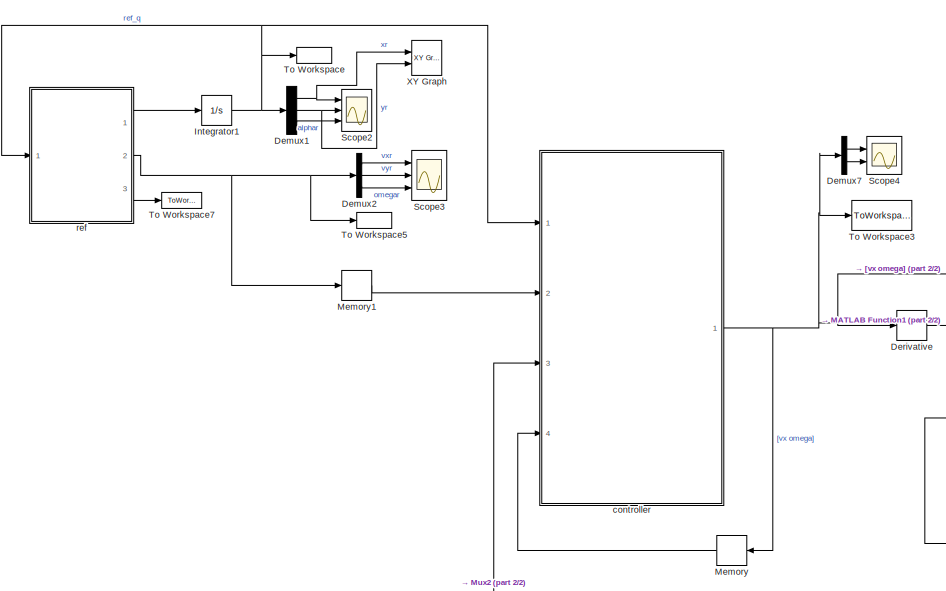
[diagram: root canvas - part 1/2, left side, full height]
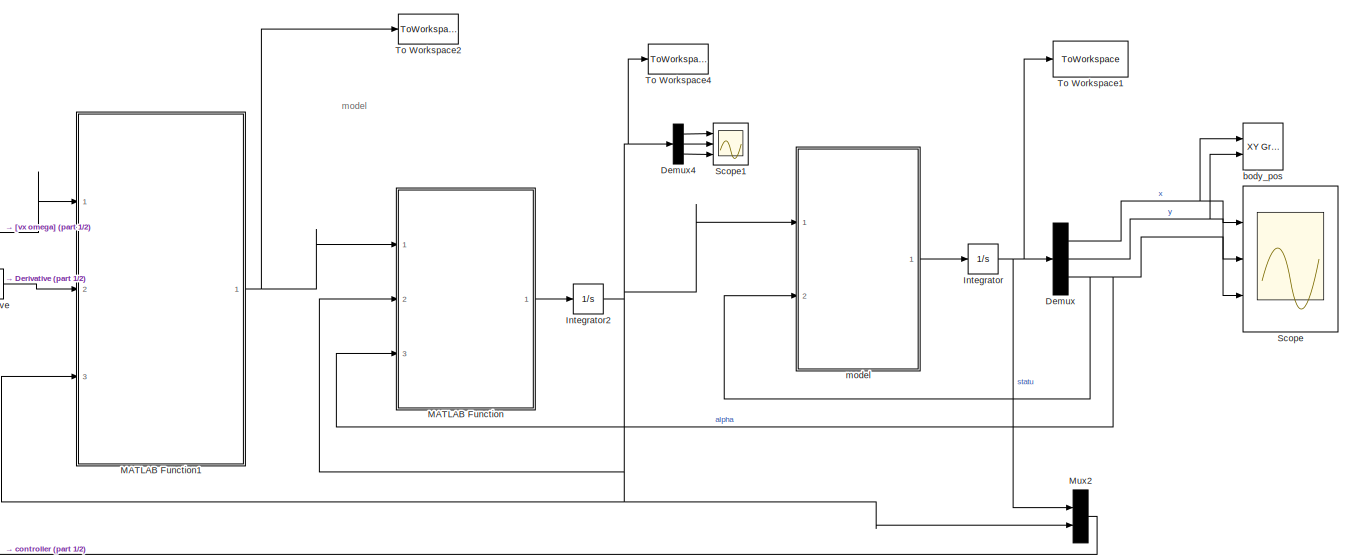
[diagram: root canvas - part 2/2, right side, full height]
MODEL slx_c3294917671f
KIND model
CONFIG AbsTol = auto
CONFIG EnableMultiTasking = off
CONFIG FixedStep = 0.05
CONFIG MaxStep = 0.05
CONFIG MinStep = auto
CONFIG RelTol = 1e-3
CONFIG SampleTimeConstraint = Unconstrained
CONFIG Solver = ode45
CONFIG SolverName = ode45
CONFIG StartTime = 0.0
CONFIG StopTime = 15
BLOCK [Demux] Demux
  DisplayOption = bar
  Outputs = 3
  Ports = [1, 3]
BLOCK [Demux] Demux1
  DisplayOption = bar
  Outputs = 3
  Ports = [1, 3]
BLOCK [Demux] Demux2
  DisplayOption = bar
  Outputs = 3
  Ports = [1, 3]
BLOCK [Demux] Demux4
  DisplayOption = bar
  Outputs = 3
  Ports = [1, 3]
BLOCK [Demux] Demux7
  DisplayOption = bar
  Outputs = 2
  Ports = [1, 2]
BLOCK [Derivative] Derivative
BLOCK [Integrator] Integrator
  IgnoreLimit = on
  InitialCondition = [1; -1; pi/2;]
  Ports = [1, 1]
BLOCK [Integrator] Integrator1
  InitialCondition = [0;0;pi/4]
  Ports = [1, 1]
BLOCK [Integrator] Integrator2
  InitialCondition = [0.2; 0; 0]
  Ports = [1, 1]
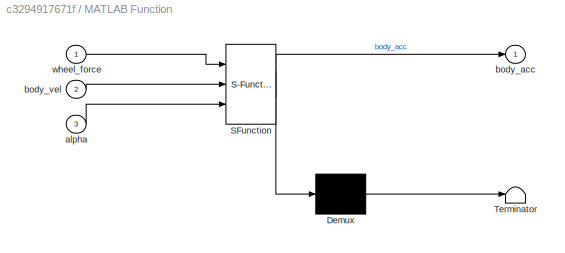
BLOCK [SubSystem] MATLAB Function
  ErrorFcn = Stateflow.Translate.translate
  PermitHierarchicalResolution = ExplicitOnly
  Ports = [3, 1]
  RequestExecContextInheritance = off
  SFBlockType = MATLAB Function
  TreatAsAtomicUnit = on
  Variant = off
BLOCK [Demux] MATLAB Function/ Demux 
  Outputs = 1
  Ports = [1, 1]
BLOCK [S-Function] MATLAB Function/ SFunction 
  EnableBusSupport = on
  FunctionName = sf_sfun
  PortCounts = [3 2]
  Ports = [3, 2]
  SFcnIsStateOwnerBlock = off
  SFunctionDeploymentMode = off
  Tag = Stateflow S-Function sim20_8_3 3
BLOCK [Terminator] MATLAB Function/ Terminator 
BLOCK [Inport] MATLAB Function/alpha
  IconDisplay = Port number
  Port = 3
BLOCK [Outport] MATLAB Function/body_acc
  IconDisplay = Port number
BLOCK [Inport] MATLAB Function/body_vel
  IconDisplay = Port number
  Port = 2
BLOCK [Inport] MATLAB Function/wheel_force
  IconDisplay = Port number
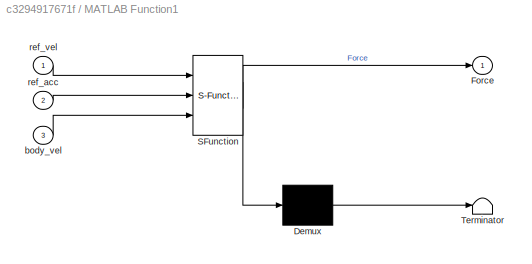
BLOCK [SubSystem] MATLAB Function1
  ErrorFcn = Stateflow.Translate.translate
  PermitHierarchicalResolution = ExplicitOnly
  Ports = [3, 1]
  RequestExecContextInheritance = off
  SFBlockType = MATLAB Function
  TreatAsAtomicUnit = on
  Variant = off
BLOCK [Demux] MATLAB Function1/ Demux 
  Outputs = 1
  Ports = [1, 1]
BLOCK [S-Function] MATLAB Function1/ SFunction 
  EnableBusSupport = on
  FunctionName = sf_sfun
  PortCounts = [3 2]
  Ports = [3, 2]
  SFcnIsStateOwnerBlock = off
  SFunctionDeploymentMode = off
  Tag = Stateflow S-Function sim20_8_3 5
BLOCK [Terminator] MATLAB Function1/ Terminator 
BLOCK [Outport] MATLAB Function1/Force
  IconDisplay = Port number
BLOCK [Inport] MATLAB Function1/body_vel
  IconDisplay = Port number
  Port = 3
BLOCK [Inport] MATLAB Function1/ref_acc
  IconDisplay = Port number
  Port = 2
BLOCK [Inport] MATLAB Function1/ref_vel
  IconDisplay = Port number
BLOCK [Memory] Memory
  X0 = [0; 0]
BLOCK [Memory] Memory1
  X0 = [0.00001; 0.00001 ; 0.000001]
BLOCK [Mux] Mux2
  DisplayOption = bar
  Inputs = 2
  Ports = [2, 1]
BLOCK [Scope] Scope
  NumInputPorts = 3
  Ports = [3]
  ScopeSpecificationString = Simulink.scopes.TimeScopeBlockCfg('CurrentConfiguration', extmgr.ConfigurationSet(extmgr.Configuration('Core','General UI',true),extmgr.Configuration('Core','Source UI',true),extmgr.Configuration('Sources','WiredSimulink',true,'DataLoggingVariableName','ScopeData1'),extmgr.Configuration('Visuals','Time Domain',true,'SerializedDisplays',{struct('MinYLimReal','-3.96529','MaxYLimReal','1.55888','YLab...<+2688ch>
BLOCK [Scope] Scope1
  NumInputPorts = 3
  Ports = [3]
  ScopeSpecificationString = Simulink.scopes.TimeScopeBlockCfg('CurrentConfiguration', extmgr.ConfigurationSet(extmgr.Configuration('Core','General UI',true),extmgr.Configuration('Core','Source UI',true),extmgr.Configuration('Sources','WiredSimulink',true,'DataLoggingVariableName','ScopeData1'),extmgr.Configuration('Visuals','Time Domain',true,'SerializedDisplays',{struct('MinYLimReal','0.33519','MaxYLimReal','1.98325','YLabe...<+2783ch>
BLOCK [Scope] Scope2
  NumInputPorts = 3
  Ports = [3]
  ScopeSpecificationString = Simulink.scopes.TimeScopeBlockCfg('CurrentConfiguration', extmgr.ConfigurationSet(extmgr.Configuration('Core','General UI',true),extmgr.Configuration('Core','Source UI',true),extmgr.Configuration('Sources','WiredSimulink',true,'DataLoggingVariableName','ScopeData3'),extmgr.Configuration('Visuals','Time Domain',true,'SerializedDisplays',{struct('MinYLimReal','-4.5','MaxYLimReal','0.5','YLabelReal',...<+2773ch>
BLOCK [Scope] Scope3
  NumInputPorts = 3
  Ports = [3]
  ScopeSpecificationString = Simulink.scopes.TimeScopeBlockCfg('CurrentConfiguration', extmgr.ConfigurationSet(extmgr.Configuration('Core','General UI',true),extmgr.Configuration('Core','Source UI',true),extmgr.Configuration('Sources','WiredSimulink',true,'DataLoggingVariableName','ScopeData4'),extmgr.Configuration('Visuals','Time Domain',true,'SerializedDisplays',{struct('MinYLimReal','0.9','MaxYLimReal','1.1','YLabelReal','...<+2743ch>
BLOCK [Scope] Scope4
  NumInputPorts = 2
  Ports = [2]
  ScopeSpecificationString = Simulink.scopes.TimeScopeBlockCfg('CurrentConfiguration', extmgr.ConfigurationSet(extmgr.Configuration('Core','General UI',true),extmgr.Configuration('Core','Source UI',true),extmgr.Configuration('Sources','WiredSimulink',true,'DataLoggingVariableName','ScopeData1'),extmgr.Configuration('Visuals','Time Domain',true,'SerializedDisplays',{struct('MinYLimReal','-6.25','MaxYLimReal','6.25','YLabelReal...<+2040ch>
BLOCK [ToWorkspace] To Workspace
  FixptAsFi = on
  MaxDataPoints = inf
  Ports = [1]
  SampleTime = -1
  Save2DSignal = 3-D array (concatenate along third dimension)
  VariableName = ref_q
BLOCK [ToWorkspace] To Workspace1
  FixptAsFi = on
  MaxDataPoints = inf
  Ports = [1]
  SampleTime = -1
  Save2DSignal = 3-D array (concatenate along third dimension)
  VariableName = body_position
BLOCK [ToWorkspace] To Workspace2
  FixptAsFi = on
  MaxDataPoints = inf
  Ports = [1]
  SampleTime = -1
  Save2DSignal = 3-D array (concatenate along third dimension)
  VariableName = control_u
BLOCK [ToWorkspace] To Workspace3
  FixptAsFi = on
  MaxDataPoints = inf
  Ports = [1]
  SampleTime = -1
  Save2DSignal = 3-D array (concatenate along third dimension)
  VariableName = vel_u
BLOCK [ToWorkspace] To Workspace4
  FixptAsFi = on
  MaxDataPoints = inf
  Ports = [1]
  SampleTime = -1
  Save2DSignal = 3-D array (concatenate along third dimension)
  VariableName = body_vel
BLOCK [ToWorkspace] To Workspace5
  FixptAsFi = on
  MaxDataPoints = inf
  Ports = [1]
  SampleTime = -1
  Save2DSignal = 3-D array (concatenate along third dimension)
  VariableName = ref_vel
BLOCK [ToWorkspace] To Workspace7
  FixptAsFi = on
  MaxDataPoints = inf
  Ports = [1]
  SampleTime = -1
  Save2DSignal = 3-D array (concatenate along third dimension)
  VariableName = ref_f
BLOCK [Reference] XY Graph  REF=simulink/Sinks/XY Graph
  Ports = [2]
  SourceBlock = simulink/Sinks/XY Graph
  SourceProductBaseCode = SL
  SourceProductName = Simulink
  SourceType = XY scope.
BLOCK [Reference] body_pos  REF=simulink/Sinks/XY Graph
  Ports = [2]
  SourceBlock = simulink/Sinks/XY Graph
  SourceProductBaseCode = SL
  SourceProductName = Simulink
  SourceType = XY scope.
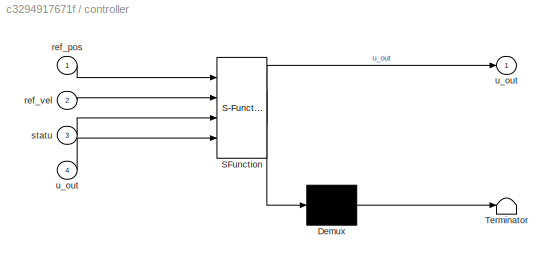
BLOCK [SubSystem] controller
  ErrorFcn = Stateflow.Translate.translate
  PermitHierarchicalResolution = ExplicitOnly
  Ports = [4, 1]
  RequestExecContextInheritance = off
  SFBlockType = MATLAB Function
  TreatAsAtomicUnit = on
  Variant = off
BLOCK [Demux] controller/ Demux 
  Outputs = 1
  Ports = [1, 1]
BLOCK [S-Function] controller/ SFunction 
  EnableBusSupport = on
  FunctionName = sf_sfun
  PortCounts = [4 2]
  Ports = [4, 2]
  SFcnIsStateOwnerBlock = off
  SFunctionDeploymentMode = off
  Tag = Stateflow S-Function sim20_8_3 1
BLOCK [Terminator] controller/ Terminator 
BLOCK [Inport] controller/ref_pos
  IconDisplay = Port number
BLOCK [Inport] controller/ref_vel
  IconDisplay = Port number
  Port = 2
BLOCK [Inport] controller/statu
  IconDisplay = Port number
  Port = 3
BLOCK [Outport] controller/u_out
  IconDisplay = Port number
BLOCK [Inport] controller/u_out 
  IconDisplay = Port number
  Port = 4
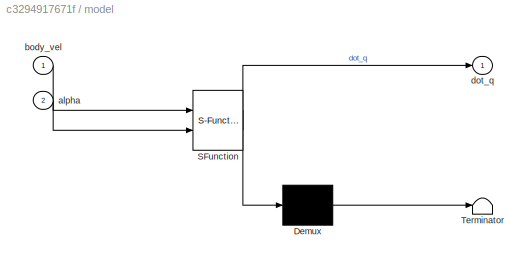
BLOCK [SubSystem] model
  ErrorFcn = Stateflow.Translate.translate
  PermitHierarchicalResolution = ExplicitOnly
  Ports = [2, 1]
  RequestExecContextInheritance = off
  SFBlockType = MATLAB Function
  TreatAsAtomicUnit = on
  Variant = off
BLOCK [Demux] model/ Demux 
  Outputs = 1
  Ports = [1, 1]
BLOCK [S-Function] model/ SFunction 
  EnableBusSupport = on
  FunctionName = sf_sfun
  PortCounts = [2 2]
  Ports = [2, 2]
  SFcnIsStateOwnerBlock = off
  SFunctionDeploymentMode = off
  Tag = Stateflow S-Function sim20_8_3 2
BLOCK [Terminator] model/ Terminator 
BLOCK [Inport] model/alpha
  IconDisplay = Port number
  Port = 2
BLOCK [Inport] model/body_vel
  IconDisplay = Port number
BLOCK [Outport] model/dot_q
  IconDisplay = Port number
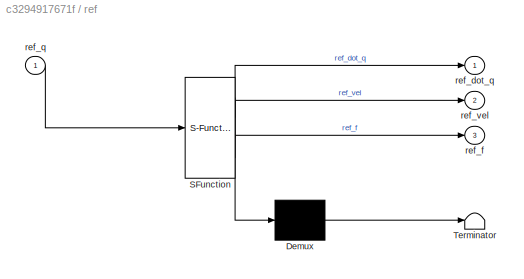
BLOCK [SubSystem] ref
  ErrorFcn = Stateflow.Translate.translate
  PermitHierarchicalResolution = ExplicitOnly
  Ports = [1, 3]
  RequestExecContextInheritance = off
  SFBlockType = MATLAB Function
  TreatAsAtomicUnit = on
  Variant = off
BLOCK [Demux] ref/ Demux 
  Outputs = 1
  Ports = [1, 1]
BLOCK [S-Function] ref/ SFunction 
  EnableBusSupport = on
  FunctionName = sf_sfun
  PortCounts = [1 4]
  Ports = [1, 4]
  SFcnIsStateOwnerBlock = off
  SFunctionDeploymentMode = off
  Tag = Stateflow S-Function sim20_8_3 4
BLOCK [Terminator] ref/ Terminator 
BLOCK [Outport] ref/ref_dot_q
  IconDisplay = Port number
BLOCK [Outport] ref/ref_f
  IconDisplay = Port number
  Port = 3
BLOCK [Inport] ref/ref_q
  IconDisplay = Port number
BLOCK [Outport] ref/ref_vel
  IconDisplay = Port number
  Port = 2
ANNOTATION (root): model
NET Demux1:1 -> Scope2:1, XY Graph:1
NET Demux1:2 -> Scope2:2, XY Graph:2
LINE Demux1:3 -> Scope2:3
LINE Demux2:1 -> Scope3:1
LINE Demux2:2 -> Scope3:2
LINE Demux2:3 -> Scope3:3
LINE Demux4:1 -> Scope1:1
LINE Demux4:2 -> Scope1:2
LINE Demux4:3 -> Scope1:3
LINE Demux7:1 -> Scope4:1
LINE Demux7:2 -> Scope4:2
NET Demux:1 -> Scope:1, body_pos:1
NET Demux:2 -> Scope:2, body_pos:2
NET Demux:3 -> MATLAB Function:3, Scope:3, model:2
LINE Derivative:1 -> MATLAB Function1:2
NET Integrator1:1 -> Demux1:1, To Workspace:1, controller:1, ref:1
NET Integrator2:1 -> Demux4:1, MATLAB Function1:3, MATLAB Function:2, Mux2:2, To Workspace4:1, model:1
NET Integrator:1 -> Demux:1, Mux2:1, To Workspace1:1
NET MATLAB Function1:1 -> MATLAB Function:1, To Workspace2:1
LINE MATLAB Function:1 -> Integrator2:1
LINE Memory1:1 -> controller:2
LINE Memory:1 -> controller:4
LINE Mux2:1 -> controller:3
NET controller:1 -> Demux7:1, Derivative:1, MATLAB Function1:1, Memory:1, To Workspace3:1
LINE model:1 -> Integrator:1
LINE ref:1 -> Integrator1:1
NET ref:2 -> Demux2:1, Memory1:1, To Workspace5:1
LINE ref:3 -> To Workspace7:1
note: NET lines group one-source signal fan-out (src -> all destinations, sorted); 1:1 wires keep LINE
CHART controller states=1 transitions=1
  STATE_LABEL 'eML_blk_kernel()'
  STATE_LABEL 'SCRIPT:\nfunction u_out  = my_MPC_controller(ref_pos, ref_vel, statu, u_out)\n\n% 程序上没有问题，在运动学模型上是可以完成任务的\n% 最近修改时间：7.25 \n% 基于运动学模型的MPC控制器\n% u_out=[vx ;  omega]\n% ref_vel=[xr yr alphar vr omegar]\n% e = [ex ey ealpha]\n\nNc= 10; Np=20; %预测时域Np\t控制时域Nc\nT=0.05; \n\n% 测试是否能得到\n%    statu=[2; -2; pi/2; 0.001; 0.001; 0.001];\n%    u_out=[0; 0];\n%    ref_pos=[0;0;pi/4]; ref_vel=[2; 0; 0];  \n%% 底盘参数\nd = 0.18;\tl = 0....<+2797ch>'
CHART model states=1 transitions=1
  STATE_LABEL 'eML_blk_kernel()'
  STATE_LABEL 'SCRIPT:\nfunction dot_q  = model(body_vel,alpha)\n\n\nwheel_radius = 0.330/2;\nd = 0.18;\nl = 0.16;\n\nR = [cos(alpha) -sin(alpha) 0;\n     sin(alpha) cos(alpha) 0;\n     0 0 1];\n% R_w2v =(wheel_radius).*[1/2     1/2;\n%                             0           0;\n%                         -1/(2*d)  1/(2*d)];\n%                     \n% max=1/wheel_radius;\n% for i=1:size(wheel_omega,2)\n%     if wheel_omega(i)>ma...<+934ch>'
CHART MATLAB Function states=1 transitions=1
  STATE_LABEL 'eML_blk_kernel()'
  STATE_LABEL 'SCRIPT:\nfunction body_acc = dynamic_model(wheel_force,body_vel,alpha)\n\ngravity=[0 0 9.81];\n\n%车辆参数\nd = 0.18;\nl = 0.16;\n\nm = 24;\nIz = 11.89;\n\nc_wheel = 513.6 ; %侧偏刚度\n\nFX1 = wheel_force(1);    % 将得到的车轮挂钩牵引力分配\nFX2 = wheel_force(2);\n\nvx=body_vel(1);\nvy=body_vel(2);\nomega=body_vel(3);\n\n% beta1=atan( ( vy+l*omega )/( vx+0.000000000000001 ));\n% beta2=atan( ( vy+l*omega )/( vx+0.000000000000001 ));\n\nbeta1=...<+279ch>'
CHART ref states=1 transitions=1
  STATE_LABEL 'eML_blk_kernel()'
  STATE_LABEL 'SCRIPT:\n%参考轨迹\n%更改时，只需更改vx和Omega即可，实现圆形和直线的不同变化\n\n\n\nfunction [ref_dot_q,ref_vel,ref_f] = fcn(ref_q)\nxr=ref_q(1);\nyr=ref_q(2);\nalphar=ref_q(3);\n\nvxr=1;\nvyr=0;\nomegar=0.5;\n\nref_vel=[vxr;vyr;omegar];\n\ndotx = vxr*cos(alphar) - vyr*sin(alphar);\ndoty = vxr*sin(alphar) + vyr*sin(alphar);\ndotalpha = omegar;\nref_dot_q=[dotx;doty;dotalpha];\n\nref_f = [0;0]\nend\n'
CHART MATLAB Function1 states=1 transitions=1
  STATE_LABEL 'eML_blk_kernel()'
  STATE_LABEL 'SCRIPT:\nfunction Force = smc_control(ref_vel,ref_acc,body_vel)\nm=24  ;   Iz=11.89     ; d=0.16    ; l=0.18    ;\nc_wheel = 513.6 ; %侧偏刚度\nvx=body_vel(1);     vy=body_vel(2);     omega=body_vel(3);\n\n%% 参数\nC=[1 0; 0 1];\nkesi=[0.3 0 ;0 0.3];   K=[0.5 0;0 0.5];\n\n%% \nM=[m 0; 0 Iz];\nV=[-m*omega*vy;\n    0];\n\nB=[1 1;-d d];\nB_=inv(B);\n\nA=[0 -l];\n\nbeta1=atan( ( vy+l*omega )/( vx ));\nbeta2=atan( ( vy+l*omega )...<+553ch>'
